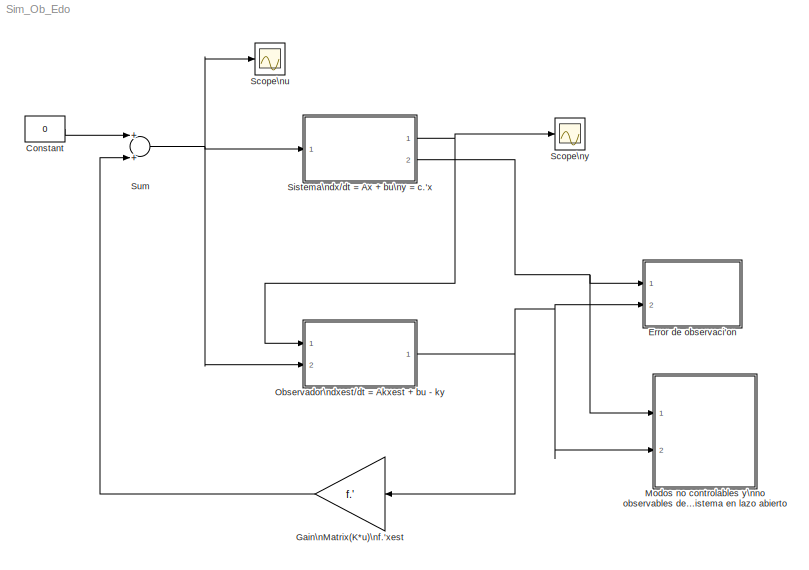
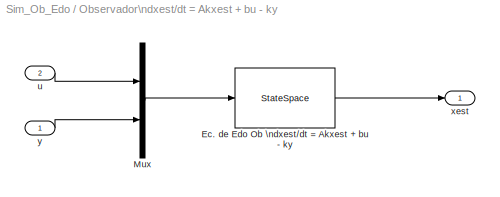
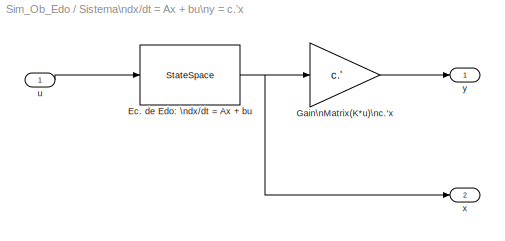
MODEL Sim_Ob_Edo
KIND model
BLOCK [Constant] Constant
  SID = 9
  Value = 0
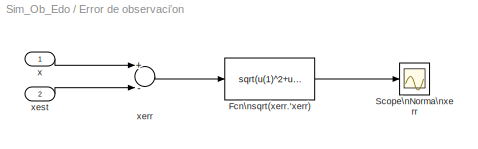
BLOCK [SubSystem] Error de observaci'on
  Ports = [2]
  RequestExecContextInheritance = off
  SID = 29
  Variant = off
BLOCK [Fcn] Error de observaci'on/Fcn\nsqrt(xerr.'xerr)
  Expr = sqrt(u(1)^2+u(2)^2+u(3)^2)
  SID = 33
BLOCK [Scope] Error de observaci'on/Scope\nNorma\nxerr
  Ports = [1]
  SID = 34
  ScopeSpecificationString = Simulink.scopes.TimeScopeBlockCfg('CurrentConfiguration', extmgr.ConfigurationSet(extmgr.Configuration('Core','General UI',true,'FigureColor',[0.501960784313725 0.501960784313725 0.501960784313725]),extmgr.Configuration('Core','Source UI',true),extmgr.Configuration('Sources','WiredSimulink',true,'DataLoggingVariableName','ScopeData3','DataLoggingSaveFormat','StructureWithTime','DataLoggingLimitDat...<+2934ch>
BLOCK [Inport] Error de observaci'on/x
  IconDisplay = Port number
  SID = 30
BLOCK [Sum] Error de observaci'on/xerr
  InputSameDT = off
  Inputs = +-
  OutDataTypeStr = Inherit: Inherit via internal rule
  Ports = [2, 1]
  SID = 35
  SaturateOnIntegerOverflow = off
BLOCK [Inport] Error de observaci'on/xest
  IconDisplay = Port number
  Port = 2
  SID = 32
BLOCK [Gain] Gain\nMatrix(K*u)\nf.'xest
  Gain = f.'
  Multiplication = Matrix(K*u) (u vector)
  OutDataTypeStr = Inherit: Inherit via internal rule
  ParamDataTypeStr = Inherit: Inherit via internal rule
  SID = 10
  SaturateOnIntegerOverflow = off
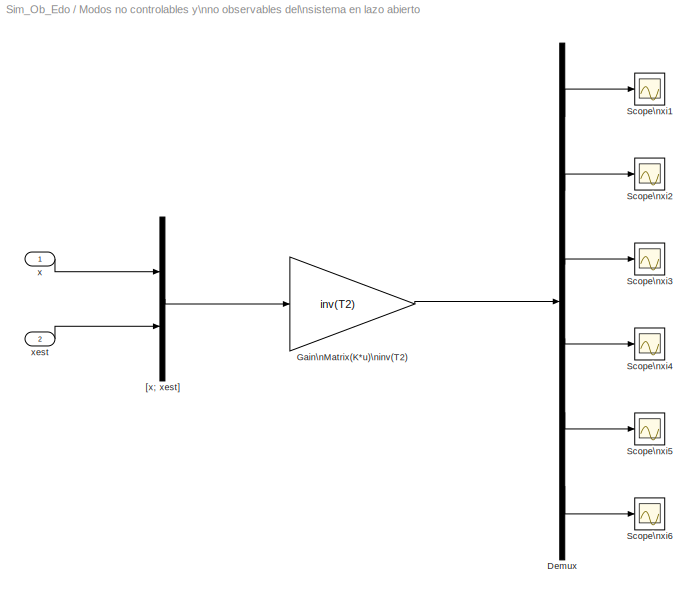
BLOCK [SubSystem] Modos no controlables y\nno observables del\nsistema en lazo abierto
  Ports = [2]
  RequestExecContextInheritance = off
  SID = 36
  Variant = off
BLOCK [Demux] Modos no controlables y\nno observables del\nsistema en lazo abierto/Demux
  DisplayOption = bar
  Outputs = 6
  Ports = [1, 6]
  SID = 43
BLOCK [Gain] Modos no controlables y\nno observables del\nsistema en lazo abierto/Gain\nMatrix(K*u)\ninv(T2)
  Gain = inv(T2)
  Multiplication = Matrix(K*u) (u vector)
  OutDataTypeStr = Inherit: Inherit via internal rule
  ParamDataTypeStr = Inherit: Inherit via internal rule
  SID = 42
  SaturateOnIntegerOverflow = off
BLOCK [Scope] Modos no controlables y\nno observables del\nsistema en lazo abierto/Scope\nxi1
  Ports = [1]
  SID = 46
  ScopeSpecificationString = Simulink.scopes.TimeScopeBlockCfg('CurrentConfiguration', extmgr.ConfigurationSet(extmgr.Configuration('Core','General UI',true,'FigureColor',[0.501960784313725 0.501960784313725 0.501960784313725]),extmgr.Configuration('Core','Source UI',true),extmgr.Configuration('Sources','WiredSimulink',true,'DataLoggingVariableName','ScopeData2','DataLoggingSaveFormat','StructureWithTime','DataLoggingLimitDat...<+2916ch>
BLOCK [Scope] Modos no controlables y\nno observables del\nsistema en lazo abierto/Scope\nxi2
  Ports = [1]
  SID = 44
  ScopeSpecificationString = Simulink.scopes.TimeScopeBlockCfg('CurrentConfiguration', extmgr.ConfigurationSet(extmgr.Configuration('Core','General UI',true,'FigureColor',[0.501960784313725 0.501960784313725 0.501960784313725]),extmgr.Configuration('Core','Source UI',true),extmgr.Configuration('Sources','WiredSimulink',true,'DataLoggingVariableName','ScopeData5','DataLoggingSaveFormat','StructureWithTime','DataLoggingLimitDat...<+2914ch>
BLOCK [Scope] Modos no controlables y\nno observables del\nsistema en lazo abierto/Scope\nxi3
  Ports = [1]
  SID = 45
  ScopeSpecificationString = Simulink.scopes.TimeScopeBlockCfg('CurrentConfiguration', extmgr.ConfigurationSet(extmgr.Configuration('Core','General UI',true,'FigureColor',[0.501960784313725 0.501960784313725 0.501960784313725]),extmgr.Configuration('Core','Source UI',true),extmgr.Configuration('Sources','WiredSimulink',true,'DataLoggingVariableName','ScopeData4','DataLoggingSaveFormat','StructureWithTime','DataLoggingLimitDat...<+2905ch>
BLOCK [Scope] Modos no controlables y\nno observables del\nsistema en lazo abierto/Scope\nxi4
  Ports = [1]
  SID = 47
  ScopeSpecificationString = Simulink.scopes.TimeScopeBlockCfg('CurrentConfiguration', extmgr.ConfigurationSet(extmgr.Configuration('Core','General UI',true,'FigureColor',[0.501960784313725 0.501960784313725 0.501960784313725]),extmgr.Configuration('Core','Source UI',true),extmgr.Configuration('Sources','WiredSimulink',true,'DataLoggingVariableName','ScopeData6','DataLoggingSaveFormat','StructureWithTime','DataLoggingLimitDat...<+2913ch>
BLOCK [Scope] Modos no controlables y\nno observables del\nsistema en lazo abierto/Scope\nxi5
  Ports = [1]
  SID = 48
  ScopeSpecificationString = Simulink.scopes.TimeScopeBlockCfg('CurrentConfiguration', extmgr.ConfigurationSet(extmgr.Configuration('Core','General UI',true,'FigureColor',[0.501960784313725 0.501960784313725 0.501960784313725]),extmgr.Configuration('Core','Source UI',true),extmgr.Configuration('Sources','WiredSimulink',true,'DataLoggingVariableName','ScopeData7','DataLoggingSaveFormat','StructureWithTime','DataLoggingLimitDat...<+2917ch>
BLOCK [Scope] Modos no controlables y\nno observables del\nsistema en lazo abierto/Scope\nxi6
  Ports = [1]
  SID = 49
  ScopeSpecificationString = Simulink.scopes.TimeScopeBlockCfg('CurrentConfiguration', extmgr.ConfigurationSet(extmgr.Configuration('Core','General UI',true,'FigureColor',[0.501960784313725 0.501960784313725 0.501960784313725]),extmgr.Configuration('Core','Source UI',true),extmgr.Configuration('Sources','WiredSimulink',true,'DataLoggingVariableName','ScopeData8','DataLoggingSaveFormat','StructureWithTime','DataLoggingLimitDat...<+2918ch>
BLOCK [Mux] Modos no controlables y\nno observables del\nsistema en lazo abierto/[x; xest]
  DisplayOption = bar
  Inputs = 2
  Ports = [2, 1]
  SID = 40
BLOCK [Inport] Modos no controlables y\nno observables del\nsistema en lazo abierto/x
  IconDisplay = Port number
  SID = 37
BLOCK [Inport] Modos no controlables y\nno observables del\nsistema en lazo abierto/xest
  IconDisplay = Port number
  Port = 2
  SID = 39
BLOCK [SubSystem] Observador\ndxest//dt = Akxest  + bu - ky
  Ports = [2, 1]
  RequestExecContextInheritance = off
  SID = 11
  Variant = off
BLOCK [StateSpace] Observador\ndxest//dt = Akxest  + bu - ky/Ec. de Edo Ob \ndxest//dt = Akxest + bu - ky
  A = Ak
  B = [b -k]
  C = Id
  D = [vcero vcero]
  Ports = [1, 1]
  SID = 13
  X0 = vcero
BLOCK [Mux] Observador\ndxest//dt = Akxest  + bu - ky/Mux
  DisplayOption = bar
  Inputs = 2
  Ports = [2, 1]
  SID = 18
BLOCK [Inport] Observador\ndxest//dt = Akxest  + bu - ky/u
  IconDisplay = Port number
  Port = 2
  SID = 17
BLOCK [Outport] Observador\ndxest//dt = Akxest  + bu - ky/xest
  IconDisplay = Port number
  SID = 15
BLOCK [Inport] Observador\ndxest//dt = Akxest  + bu - ky/y
  IconDisplay = Port number
  SID = 12
BLOCK [Scope] Scope\nu
  Ports = [1]
  SID = 20
  ScopeSpecificationString = Simulink.scopes.TimeScopeBlockCfg('CurrentConfiguration', extmgr.ConfigurationSet(extmgr.Configuration('Core','General UI',true,'FigureColor',[0.501960784313725 0.501960784313725 0.501960784313725]),extmgr.Configuration('Core','Source UI',true),extmgr.Configuration('Sources','WiredSimulink',true,'DataLoggingSaveFormat','StructureWithTime','DataLoggingLimitDataPoints',true,'DataLoggingDecimation','...<+2881ch>
BLOCK [Scope] Scope\ny
  Ports = [1]
  SID = 22
  ScopeSpecificationString = Simulink.scopes.TimeScopeBlockCfg('CurrentConfiguration', extmgr.ConfigurationSet(extmgr.Configuration('Core','General UI',true,'FigureColor',[0.501960784313725 0.501960784313725 0.501960784313725]),extmgr.Configuration('Core','Source UI',true),extmgr.Configuration('Sources','WiredSimulink',true,'DataLoggingVariableName','ScopeData1','DataLoggingSaveFormat','StructureWithTime','DataLoggingLimitDat...<+2946ch>
BLOCK [SubSystem] Sistema\ndx//dt = Ax  + bu\ny = c.'x
  Ports = [1, 2]
  RequestExecContextInheritance = off
  SID = 1
  Variant = off
BLOCK [StateSpace] Sistema\ndx//dt = Ax  + bu\ny = c.'x/Ec. de Edo: \ndx//dt = Ax + bu
  A = A
  B = b
  C = Id
  D = vcero
  Ports = [1, 1]
  SID = 6
  X0 = x0
BLOCK [Gain] Sistema\ndx//dt = Ax  + bu\ny = c.'x/Gain\nMatrix(K*u)\nc.'x
  Gain = c.'
  Multiplication = Matrix(K*u) (u vector)
  OutDataTypeStr = Inherit: Inherit via internal rule
  ParamDataTypeStr = Inherit: Inherit via internal rule
  SID = 7
  SaturateOnIntegerOverflow = off
BLOCK [Inport] Sistema\ndx//dt = Ax  + bu\ny = c.'x/u
  IconDisplay = Port number
  SID = 2
BLOCK [Outport] Sistema\ndx//dt = Ax  + bu\ny = c.'x/x
  IconDisplay = Port number
  Port = 2
  SID = 4
BLOCK [Outport] Sistema\ndx//dt = Ax  + bu\ny = c.'x/y
  IconDisplay = Port number
  SID = 3
BLOCK [Sum] Sum
  InputSameDT = off
  OutDataTypeStr = Inherit: Inherit via internal rule
  Ports = [2, 1]
  SID = 8
  SaturateOnIntegerOverflow = off
LINE Constant:1 -> Sum:1
LINE Error de observaci'on/Fcn\nsqrt(xerr.'xerr):1 -> Error de observaci'on/Scope\nNorma\nxerr:1
LINE Error de observaci'on/x:1 -> Error de observaci'on/xerr:1
LINE Error de observaci'on/xerr:1 -> Error de observaci'on/Fcn\nsqrt(xerr.'xerr):1
LINE Error de observaci'on/xest:1 -> Error de observaci'on/xerr:2
LINE Gain\nMatrix(K*u)\nf.'xest:1 -> Sum:2
LINE Modos no controlables y\nno observables del\nsistema en lazo abierto/Demux:1 -> Modos no controlables y\nno observables del\nsistema en lazo abierto/Scope\nxi1:1
LINE Modos no controlables y\nno observables del\nsistema en lazo abierto/Demux:2 -> Modos no controlables y\nno observables del\nsistema en lazo abierto/Scope\nxi2:1
LINE Modos no controlables y\nno observables del\nsistema en lazo abierto/Demux:3 -> Modos no controlables y\nno observables del\nsistema en lazo abierto/Scope\nxi3:1
LINE Modos no controlables y\nno observables del\nsistema en lazo abierto/Demux:4 -> Modos no controlables y\nno observables del\nsistema en lazo abierto/Scope\nxi4:1
LINE Modos no controlables y\nno observables del\nsistema en lazo abierto/Demux:5 -> Modos no controlables y\nno observables del\nsistema en lazo abierto/Scope\nxi5:1
LINE Modos no controlables y\nno observables del\nsistema en lazo abierto/Demux:6 -> Modos no controlables y\nno observables del\nsistema en lazo abierto/Scope\nxi6:1
LINE Modos no controlables y\nno observables del\nsistema en lazo abierto/Gain\nMatrix(K*u)\ninv(T2):1 -> Modos no controlables y\nno observables del\nsistema en lazo abierto/Demux:1
LINE Modos no controlables y\nno observables del\nsistema en lazo abierto/[x; xest]:1 -> Modos no controlables y\nno observables del\nsistema en lazo abierto/Gain\nMatrix(K*u)\ninv(T2):1
LINE Modos no controlables y\nno observables del\nsistema en lazo abierto/x:1 -> Modos no controlables y\nno observables del\nsistema en lazo abierto/[x; xest]:1
LINE Modos no controlables y\nno observables del\nsistema en lazo abierto/xest:1 -> Modos no controlables y\nno observables del\nsistema en lazo abierto/[x; xest]:2
LINE Observador\ndxest//dt = Akxest  + bu - ky/Ec. de Edo Ob \ndxest//dt = Akxest + bu - ky:1 -> Observador\ndxest//dt = Akxest  + bu - ky/xest:1
LINE Observador\ndxest//dt = Akxest  + bu - ky/Mux:1 -> Observador\ndxest//dt = Akxest  + bu - ky/Ec. de Edo Ob \ndxest//dt = Akxest + bu - ky:1
LINE Observador\ndxest//dt = Akxest  + bu - ky/u:1 -> Observador\ndxest//dt = Akxest  + bu - ky/Mux:1
LINE Observador\ndxest//dt = Akxest  + bu - ky/y:1 -> Observador\ndxest//dt = Akxest  + bu - ky/Mux:2
NET Observador\ndxest//dt = Akxest  + bu - ky:1 -> Error de observaci'on:2, Gain\nMatrix(K*u)\nf.'xest:1, Modos no controlables y\nno observables del\nsistema en lazo abierto:2
NET Sistema\ndx//dt = Ax  + bu\ny = c.'x/Ec. de Edo: \ndx//dt = Ax + bu:1 -> Sistema\ndx//dt = Ax  + bu\ny = c.'x/Gain\nMatrix(K*u)\nc.'x:1, Sistema\ndx//dt = Ax  + bu\ny = c.'x/x:1
LINE Sistema\ndx//dt = Ax  + bu\ny = c.'x/Gain\nMatrix(K*u)\nc.'x:1 -> Sistema\ndx//dt = Ax  + bu\ny = c.'x/y:1
LINE Sistema\ndx//dt = Ax  + bu\ny = c.'x/u:1 -> Sistema\ndx//dt = Ax  + bu\ny = c.'x/Ec. de Edo: \ndx//dt = Ax + bu:1
NET Sistema\ndx//dt = Ax  + bu\ny = c.'x:1 -> Observador\ndxest//dt = Akxest  + bu - ky:1, Scope\ny:1
NET Sistema\ndx//dt = Ax  + bu\ny = c.'x:2 -> Error de observaci'on:1, Modos no controlables y\nno observables del\nsistema en lazo abierto:1
NET Sum:1 -> Observador\ndxest//dt = Akxest  + bu - ky:2, Scope\nu:1, Sistema\ndx//dt = Ax  + bu\ny = c.'x:1
note: NET lines group one-source signal fan-out (src -> all destinations, sorted); 1:1 wires keep LINE
